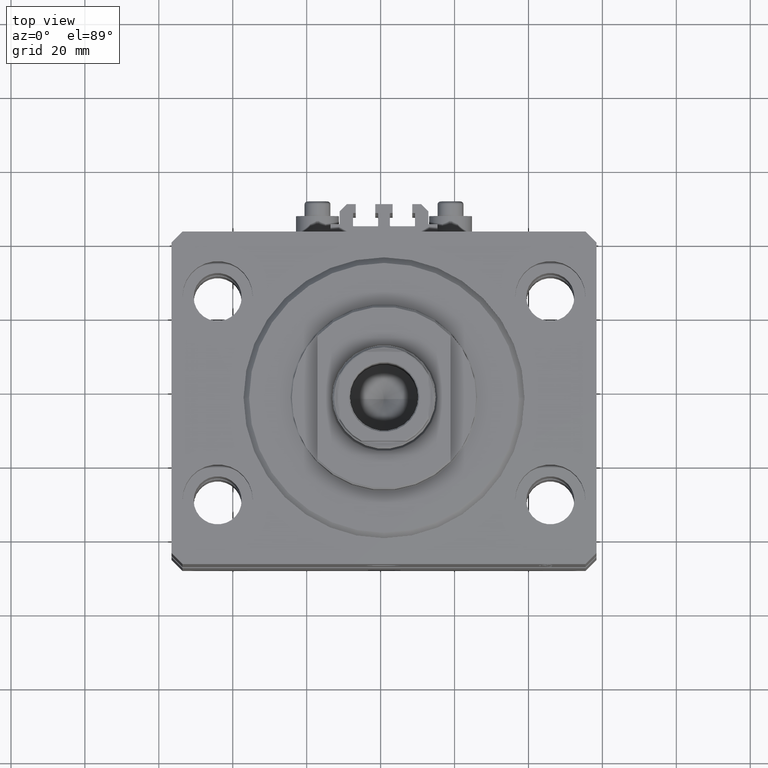
[diagram: clean part render]
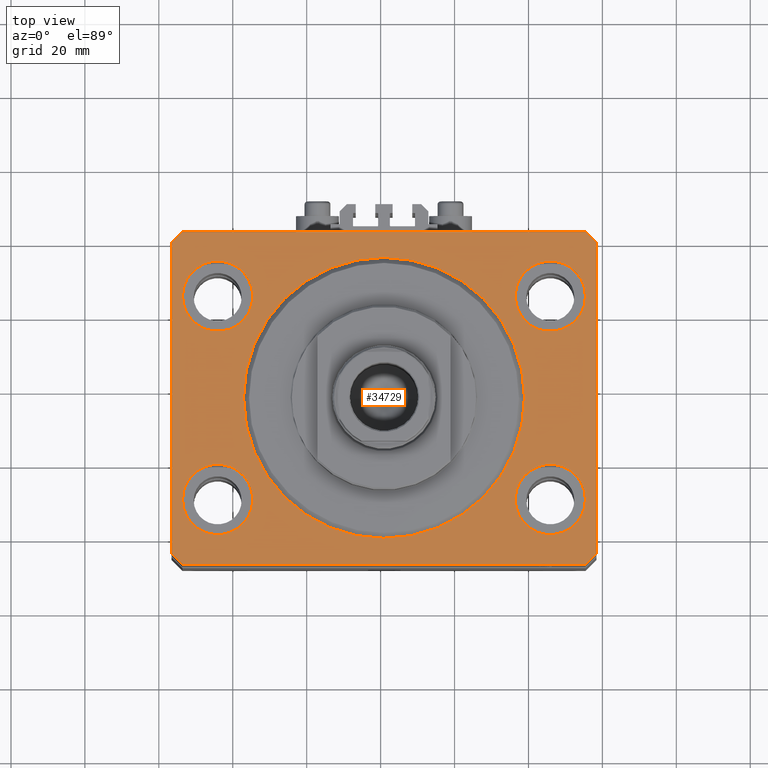
[diagram: same view with one face highlighted and labeled with its STEP entity id]
A machine part, top view. The second image highlights one B-rep face of the part: STEP entity #34729.
In plain terms, the highlighted planar face has unit normal (0, 0, 1).
Its self-contained STEP definition (entity closure, byte-faithful):
#46 = VERTEX_POINT ( 'NONE', #30095 ) ;
#297 = ORIENTED_EDGE ( 'NONE', *, *, #22252, .F. ) ;
#300 = DIRECTION ( 'NONE',  ( 1.000000000000000000, 0.000000000000000000, 0.000000000000000000 ) ) ;
#389 = CARTESIAN_POINT ( 'NONE',  ( -38.00000000000000000, 4.653657836759941941E-15, 0.000000000000000000 ) ) ;
#455 = VERTEX_POINT ( 'NONE', #44537 ) ;
#667 = VECTOR ( 'NONE', #43890, 999.9999999999998863 ) ;
#1815 = AXIS2_PLACEMENT_3D ( 'NONE', #33395, #21963, #48065 ) ;
#1934 = CIRCLE ( 'NONE', #47192, 9.500000000000001776 ) ;
#2573 = EDGE_CURVE ( 'NONE', #36469, #23112, #39910, .T. ) ;
#3506 = DIRECTION ( 'NONE',  ( 6.443258625056715108E-15, 1.000000000000000000, 0.000000000000000000 ) ) ;
#3905 = EDGE_LOOP ( 'NONE', ( #15468, #37154 ) ) ;
#4015 = VERTEX_POINT ( 'NONE', #31647 ) ;
#4058 = ORIENTED_EDGE ( 'NONE', *, *, #20158, .T. ) ;
#4148 = LINE ( 'NONE', #8859, #39136 ) ;
#4155 = EDGE_CURVE ( 'NONE', #40783, #36469, #45040, .T. ) ;
#4273 = AXIS2_PLACEMENT_3D ( 'NONE', #11895, #27068, #45719 ) ;
#5043 = AXIS2_PLACEMENT_3D ( 'NONE', #27177, #22960, #19731 ) ;
#5101 = ORIENTED_EDGE ( 'NONE', *, *, #37329, .F. ) ;
#5182 = VERTEX_POINT ( 'NONE', #15883 ) ;
#5372 = CARTESIAN_POINT ( 'NONE',  ( -54.50000000000000711, -45.00000000000000000, 0.000000000000000000 ) ) ;
#5712 = DIRECTION ( 'NONE',  ( 1.000000000000000000, 0.000000000000000000, 0.000000000000000000 ) ) ;
#6382 = CARTESIAN_POINT ( 'NONE',  ( 54.50000000000058975, 45.00000000000002842, 0.000000000000000000 ) ) ;
#6741 = CARTESIAN_POINT ( 'NONE',  ( 45.00000000000000000, -27.49999999999999645, 0.000000000000000000 ) ) ;
#7587 = EDGE_CURVE ( 'NONE', #28371, #46, #39642, .T. ) ;
#7612 = DIRECTION ( 'NONE',  ( 0.000000000000000000, 0.000000000000000000, 1.000000000000000000 ) ) ;
#7758 = ORIENTED_EDGE ( 'NONE', *, *, #11813, .T. ) ;
#8754 = ORIENTED_EDGE ( 'NONE', *, *, #2573, .T. ) ;
#8859 = CARTESIAN_POINT ( 'NONE',  ( -54.49999999999999289, 45.00000000000000000, 0.000000000000000000 ) ) ;
#9292 = LINE ( 'NONE', #20998, #39179 ) ;
#9526 = VERTEX_POINT ( 'NONE', #48006 ) ;
#9644 = DIRECTION ( 'NONE',  ( 1.000000000000000000, 0.000000000000000000, 0.000000000000000000 ) ) ;
#9842 = CIRCLE ( 'NONE', #25757, 9.500000000000001776 ) ;
#10076 = EDGE_CURVE ( 'NONE', #42091, #40298, #42585, .T. ) ;
#10317 = VERTEX_POINT ( 'NONE', #32308 ) ;
#11053 = EDGE_CURVE ( 'NONE', #46, #28371, #46108, .T. ) ;
#11528 = CARTESIAN_POINT ( 'NONE',  ( 35.50000000000000000, -27.49999999999999645, 0.000000000000000000 ) ) ;
#11813 = EDGE_CURVE ( 'NONE', #455, #40783, #48783, .T. ) ;
#11895 = CARTESIAN_POINT ( 'NONE',  ( 45.00000000000000000, 27.50000000000001776, 0.000000000000000000 ) ) ;
#12067 = DIRECTION ( 'NONE',  ( 1.000000000000000000, 0.000000000000000000, 0.000000000000000000 ) ) ;
#12089 = EDGE_LOOP ( 'NONE', ( #43171, #40113 ) ) ;
#12161 = AXIS2_PLACEMENT_3D ( 'NONE', #32383, #39107, #35869 ) ;
#12751 = FACE_BOUND ( 'NONE', #12089, .T. ) ;
#13143 = DIRECTION ( 'NONE',  ( 0.000000000000000000, 0.000000000000000000, 1.000000000000000000 ) ) ;
#13297 = EDGE_CURVE ( 'NONE', #44125, #48482, #16812, .T. ) ;
#14611 = CIRCLE ( 'NONE', #5043, 9.500000000000001776 ) ;
#14692 = VECTOR ( 'NONE', #35966, 1000.000000000000000 ) ;
#15068 = CARTESIAN_POINT ( 'NONE',  ( -57.50000000000000711, -42.00000000000000711, 0.000000000000000000 ) ) ;
#15126 = VECTOR ( 'NONE', #41673, 1000.000000000000114 ) ;
#15468 = ORIENTED_EDGE ( 'NONE', *, *, #11053, .F. ) ;
#15805 = CARTESIAN_POINT ( 'NONE',  ( -45.00000000000000000, 27.50000000000000355, 0.000000000000000000 ) ) ;
#15883 = CARTESIAN_POINT ( 'NONE',  ( -54.50000000000000000, -27.49999999999999645, 0.000000000000000000 ) ) ;
#16380 = CARTESIAN_POINT ( 'NONE',  ( -57.49999999999998579, 42.00000000000000711, 0.000000000000000000 ) ) ;
#16812 = CIRCLE ( 'NONE', #23174, 38.00000000000000000 ) ;
#16841 = VERTEX_POINT ( 'NONE', #47419 ) ;
#17063 = VERTEX_POINT ( 'NONE', #16380 ) ;
#18033 = CARTESIAN_POINT ( 'NONE',  ( 57.50000000000055422, 41.99999999999997868, 0.000000000000000000 ) ) ;
#18553 = EDGE_LOOP ( 'NONE', ( #34237, #20301, #4058, #32695, #26706, #7758, #33999, #8754 ) ) ;
#18561 = VECTOR ( 'NONE', #21559, 1000.000000000000000 ) ;
#19292 = CARTESIAN_POINT ( 'NONE',  ( 54.50000000000000000, -27.49999999999999645, 0.000000000000000000 ) ) ;
#19459 = VERTEX_POINT ( 'NONE', #19292 ) ;
#19722 = VECTOR ( 'NONE', #3506, 1000.000000000000000 ) ;
#19731 = DIRECTION ( 'NONE',  ( 1.000000000000000000, 0.000000000000000000, 0.000000000000000000 ) ) ;
#19831 = EDGE_LOOP ( 'NONE', ( #24180, #5101 ) ) ;
#20158 = EDGE_CURVE ( 'NONE', #17063, #42091, #9292, .T. ) ;
#20301 = ORIENTED_EDGE ( 'NONE', *, *, #31975, .T. ) ;
#20998 = CARTESIAN_POINT ( 'NONE',  ( -57.49999999999998579, 42.00000000000000711, 0.000000000000000000 ) ) ;
#21559 = DIRECTION ( 'NONE',  ( -1.000000000000000000, -2.546383084002639322E-16, 0.000000000000000000 ) ) ;
#21917 = DIRECTION ( 'NONE',  ( 0.000000000000000000, 0.000000000000000000, 1.000000000000000000 ) ) ;
#21963 = DIRECTION ( 'NONE',  ( 0.000000000000000000, 0.000000000000000000, 1.000000000000000000 ) ) ;
#22022 = CARTESIAN_POINT ( 'NONE',  ( -57.50000000000000711, -42.00000000000000711, 0.000000000000000000 ) ) ;
#22252 = EDGE_CURVE ( 'NONE', #4015, #5182, #1934, .T. ) ;
#22552 = EDGE_LOOP ( 'NONE', ( #48504, #43110 ) ) ;
#22663 = EDGE_CURVE ( 'NONE', #9526, #10317, #9842, .T. ) ;
#22960 = DIRECTION ( 'NONE',  ( 0.000000000000000000, 0.000000000000000000, 1.000000000000000000 ) ) ;
#23112 = VERTEX_POINT ( 'NONE', #35308 ) ;
#23174 = AXIS2_PLACEMENT_3D ( 'NONE', #35776, #13143, #9644 ) ;
#23500 = EDGE_CURVE ( 'NONE', #40298, #455, #35726, .T. ) ;
#24180 = ORIENTED_EDGE ( 'NONE', *, *, #41605, .F. ) ;
#24915 = FACE_BOUND ( 'NONE', #19831, .T. ) ;
#25247 = EDGE_LOOP ( 'NONE', ( #297, #45333 ) ) ;
#25757 = AXIS2_PLACEMENT_3D ( 'NONE', #48550, #33394, #300 ) ;
#26149 = DIRECTION ( 'NONE',  ( 1.000000000000000000, 0.000000000000000000, 0.000000000000000000 ) ) ;
#26300 = CARTESIAN_POINT ( 'NONE',  ( 38.00000000000000000, 0.000000000000000000, 0.000000000000000000 ) ) ;
#26389 = CARTESIAN_POINT ( 'NONE',  ( -45.00000000000000000, -27.49999999999999645, 0.000000000000000000 ) ) ;
#26706 = ORIENTED_EDGE ( 'NONE', *, *, #23500, .T. ) ;
#27043 = DIRECTION ( 'NONE',  ( -0.7071067811865483499, -0.7071067811865466846, 0.000000000000000000 ) ) ;
#27068 = DIRECTION ( 'NONE',  ( 0.000000000000000000, 0.000000000000000000, 1.000000000000000000 ) ) ;
#27177 = CARTESIAN_POINT ( 'NONE',  ( 45.00000000000000000, -27.49999999999999645, 0.000000000000000000 ) ) ;
#27916 = PLANE ( 'NONE',  #12161 ) ;
#28371 = VERTEX_POINT ( 'NONE', #33827 ) ;
#28408 = FACE_BOUND ( 'NONE', #22552, .T. ) ;
#28545 = AXIS2_PLACEMENT_3D ( 'NONE', #43277, #36796, #5712 ) ;
#29897 = CARTESIAN_POINT ( 'NONE',  ( 54.50000000000000711, -44.99999999999998579, 0.000000000000000000 ) ) ;
#30095 = CARTESIAN_POINT ( 'NONE',  ( -35.50000000000000000, 27.50000000000000355, 0.000000000000000000 ) ) ;
#31647 = CARTESIAN_POINT ( 'NONE',  ( -35.50000000000000000, -27.49999999999999645, 0.000000000000000000 ) ) ;
#31867 = VECTOR ( 'NONE', #41081, 1000.000000000000000 ) ;
#31975 = EDGE_CURVE ( 'NONE', #16841, #17063, #4148, .T. ) ;
#32236 = CARTESIAN_POINT ( 'NONE',  ( -54.50000000000000711, -45.00000000000000000, 0.000000000000000000 ) ) ;
#32303 = EDGE_CURVE ( 'NONE', #48482, #44125, #38357, .T. ) ;
#32308 = CARTESIAN_POINT ( 'NONE',  ( 35.50000000000000000, 27.50000000000001776, 0.000000000000000000 ) ) ;
#32383 = CARTESIAN_POINT ( 'NONE',  ( 0.000000000000000000, 0.000000000000000000, 0.000000000000000000 ) ) ;
#32695 = ORIENTED_EDGE ( 'NONE', *, *, #10076, .T. ) ;
#33394 = DIRECTION ( 'NONE',  ( 0.000000000000000000, 0.000000000000000000, 1.000000000000000000 ) ) ;
#33395 = CARTESIAN_POINT ( 'NONE',  ( 0.000000000000000000, 0.000000000000000000, 0.000000000000000000 ) ) ;
#33827 = CARTESIAN_POINT ( 'NONE',  ( -54.50000000000000000, 27.50000000000000355, 0.000000000000000000 ) ) ;
#33999 = ORIENTED_EDGE ( 'NONE', *, *, #4155, .T. ) ;
#34237 = ORIENTED_EDGE ( 'NONE', *, *, #35645, .T. ) ;
#34331 = EDGE_CURVE ( 'NONE', #10317, #9526, #46376, .T. ) ;
#34729 = ADVANCED_FACE ( 'NONE', ( #46806, #24915, #28408, #39594, #12751, #47292 ), #27916, .T. ) ;
#34735 = CIRCLE ( 'NONE', #45830, 9.500000000000001776 ) ;
#35308 = CARTESIAN_POINT ( 'NONE',  ( 54.50000000000058975, 45.00000000000002842, 0.000000000000000000 ) ) ;
#35645 = EDGE_CURVE ( 'NONE', #23112, #16841, #40457, .T. ) ;
#35726 = LINE ( 'NONE', #32236, #14692 ) ;
#35776 = CARTESIAN_POINT ( 'NONE',  ( 0.000000000000000000, 0.000000000000000000, 0.000000000000000000 ) ) ;
#35869 = DIRECTION ( 'NONE',  ( 1.000000000000000000, 0.000000000000000000, -0.000000000000000000 ) ) ;
#35966 = DIRECTION ( 'NONE',  ( 1.000000000000000000, 1.273191542001326317E-16, 0.000000000000000000 ) ) ;
#36157 = DIRECTION ( 'NONE',  ( -2.478176394252581141E-16, -1.000000000000000000, 0.000000000000000000 ) ) ;
#36469 = VERTEX_POINT ( 'NONE', #41211 ) ;
#36796 = DIRECTION ( 'NONE',  ( 0.000000000000000000, 0.000000000000000000, 1.000000000000000000 ) ) ;
#37154 = ORIENTED_EDGE ( 'NONE', *, *, #7587, .F. ) ;
#37329 = EDGE_CURVE ( 'NONE', #47858, #19459, #14611, .T. ) ;
#37462 = DIRECTION ( 'NONE',  ( 1.000000000000000000, 0.000000000000000000, 0.000000000000000000 ) ) ;
#38197 = CARTESIAN_POINT ( 'NONE',  ( -45.00000000000000000, -27.49999999999999645, 0.000000000000000000 ) ) ;
#38357 = CIRCLE ( 'NONE', #1815, 38.00000000000000000 ) ;
#38450 = DIRECTION ( 'NONE',  ( 0.000000000000000000, 0.000000000000000000, 1.000000000000000000 ) ) ;
#38569 = AXIS2_PLACEMENT_3D ( 'NONE', #6741, #21917, #44293 ) ;
#39107 = DIRECTION ( 'NONE',  ( 0.000000000000000000, 0.000000000000000000, 1.000000000000000000 ) ) ;
#39136 = VECTOR ( 'NONE', #27043, 1000.000000000000000 ) ;
#39179 = VECTOR ( 'NONE', #36157, 1000.000000000000000 ) ;
#39339 = CIRCLE ( 'NONE', #38569, 9.500000000000001776 ) ;
#39594 = FACE_BOUND ( 'NONE', #3905, .T. ) ;
#39642 = CIRCLE ( 'NONE', #28545, 9.500000000000001776 ) ;
#39910 = LINE ( 'NONE', #18033, #667 ) ;
#40113 = ORIENTED_EDGE ( 'NONE', *, *, #32303, .F. ) ;
#40298 = VERTEX_POINT ( 'NONE', #5372 ) ;
#40373 = CARTESIAN_POINT ( 'NONE',  ( 57.50000000000000711, -41.99999999999998579, 0.000000000000000000 ) ) ;
#40457 = LINE ( 'NONE', #6382, #18561 ) ;
#40783 = VERTEX_POINT ( 'NONE', #40373 ) ;
#41081 = DIRECTION ( 'NONE',  ( 0.7071067811865483499, 0.7071067811865466846, 0.000000000000000000 ) ) ;
#41211 = CARTESIAN_POINT ( 'NONE',  ( 57.50000000000055422, 41.99999999999997868, 0.000000000000000000 ) ) ;
#41561 = DIRECTION ( 'NONE',  ( 0.000000000000000000, 0.000000000000000000, 1.000000000000000000 ) ) ;
#41605 = EDGE_CURVE ( 'NONE', #19459, #47858, #39339, .T. ) ;
#41673 = DIRECTION ( 'NONE',  ( 0.7071067811865491270, -0.7071067811865459074, 0.000000000000000000 ) ) ;
#42091 = VERTEX_POINT ( 'NONE', #22022 ) ;
#42167 = AXIS2_PLACEMENT_3D ( 'NONE', #15805, #7612, #12067 ) ;
#42585 = LINE ( 'NONE', #15068, #15126 ) ;
#43110 = ORIENTED_EDGE ( 'NONE', *, *, #34331, .F. ) ;
#43171 = ORIENTED_EDGE ( 'NONE', *, *, #13297, .F. ) ;
#43277 = CARTESIAN_POINT ( 'NONE',  ( -45.00000000000000000, 27.50000000000000355, 0.000000000000000000 ) ) ;
#43890 = DIRECTION ( 'NONE',  ( -0.7071067811865376918, 0.7071067811865574537, 0.000000000000000000 ) ) ;
#44125 = VERTEX_POINT ( 'NONE', #26300 ) ;
#44293 = DIRECTION ( 'NONE',  ( 1.000000000000000000, 0.000000000000000000, 0.000000000000000000 ) ) ;
#44537 = CARTESIAN_POINT ( 'NONE',  ( 54.50000000000000711, -44.99999999999998579, 0.000000000000000000 ) ) ;
#45040 = LINE ( 'NONE', #48267, #19722 ) ;
#45333 = ORIENTED_EDGE ( 'NONE', *, *, #48515, .F. ) ;
#45719 = DIRECTION ( 'NONE',  ( 1.000000000000000000, 0.000000000000000000, 0.000000000000000000 ) ) ;
#45830 = AXIS2_PLACEMENT_3D ( 'NONE', #38197, #38450, #37462 ) ;
#46108 = CIRCLE ( 'NONE', #42167, 9.500000000000001776 ) ;
#46376 = CIRCLE ( 'NONE', #4273, 9.500000000000001776 ) ;
#46806 = FACE_BOUND ( 'NONE', #25247, .T. ) ;
#47192 = AXIS2_PLACEMENT_3D ( 'NONE', #26389, #41561, #26149 ) ;
#47292 = FACE_OUTER_BOUND ( 'NONE', #18553, .T. ) ;
#47419 = CARTESIAN_POINT ( 'NONE',  ( -54.49999999999999289, 45.00000000000000000, 0.000000000000000000 ) ) ;
#47858 = VERTEX_POINT ( 'NONE', #11528 ) ;
#48006 = CARTESIAN_POINT ( 'NONE',  ( 54.50000000000000000, 27.50000000000001776, 0.000000000000000000 ) ) ;
#48065 = DIRECTION ( 'NONE',  ( 1.000000000000000000, 0.000000000000000000, 0.000000000000000000 ) ) ;
#48267 = CARTESIAN_POINT ( 'NONE',  ( 57.50000000000000711, -41.99999999999998579, 0.000000000000000000 ) ) ;
#48482 = VERTEX_POINT ( 'NONE', #389 ) ;
#48504 = ORIENTED_EDGE ( 'NONE', *, *, #22663, .F. ) ;
#48515 = EDGE_CURVE ( 'NONE', #5182, #4015, #34735, .T. ) ;
#48550 = CARTESIAN_POINT ( 'NONE',  ( 45.00000000000000000, 27.50000000000001776, 0.000000000000000000 ) ) ;
#48783 = LINE ( 'NONE', #29897, #31867 ) ;